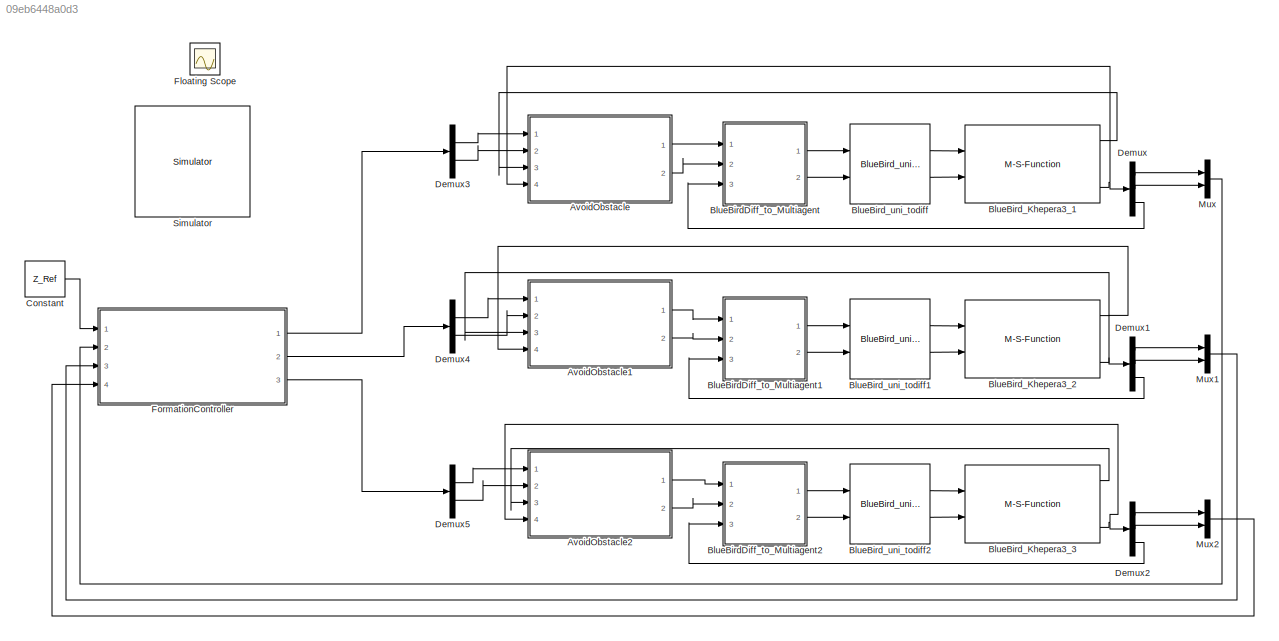
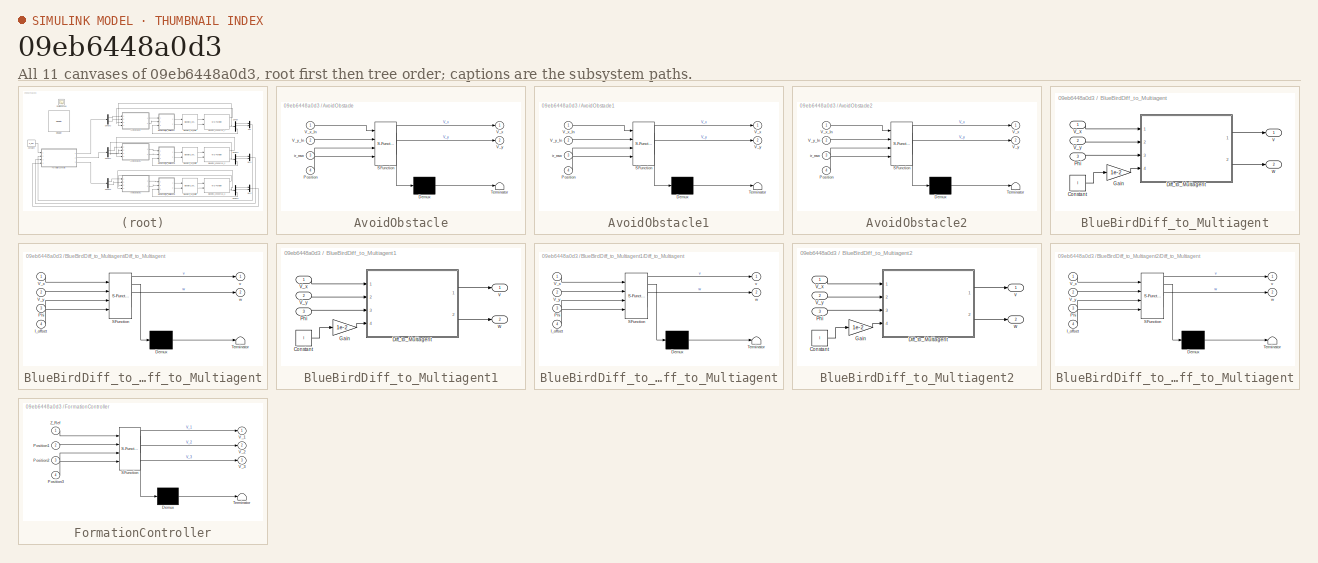
[diagram: thumbnail index - all 11 canvases of the model, root first then tree order]
MODEL slx_09eb6448a0d3
KIND model
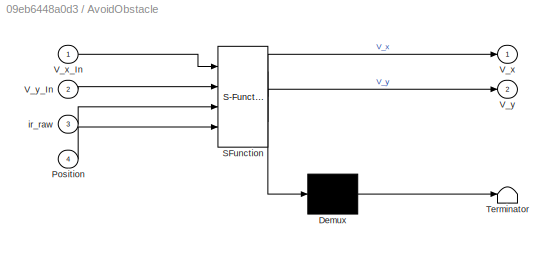
BLOCK [SubSystem] AvoidObstacle
  ErrorFcn = Stateflow.Translate.translate
  PermitHierarchicalResolution = ExplicitOnly
  Ports = [4, 2]
  RequestExecContextInheritance = off
  SFBlockType = MATLAB Function
  TreatAsAtomicUnit = on
BLOCK [Demux] AvoidObstacle/ Demux 
  Outputs = 1
  Ports = [1, 1]
BLOCK [S-Function] AvoidObstacle/ SFunction 
  EnableBusSupport = on
  FunctionName = sf_sfun
  PortCounts = [4 3]
  Ports = [4, 3]
  Tag = Stateflow S-Function BlueBird_Formation 5
BLOCK [Terminator] AvoidObstacle/ Terminator 
BLOCK [Inport] AvoidObstacle/Position
  IconDisplay = Port number
  Port = 4
BLOCK [Outport] AvoidObstacle/V_x
  IconDisplay = Port number
BLOCK [Inport] AvoidObstacle/V_x_In
  IconDisplay = Port number
BLOCK [Outport] AvoidObstacle/V_y
  IconDisplay = Port number
  Port = 2
BLOCK [Inport] AvoidObstacle/V_y_In
  IconDisplay = Port number
  Port = 2
BLOCK [Inport] AvoidObstacle/ir_raw
  IconDisplay = Port number
  Port = 3
BLOCK [SubSystem] AvoidObstacle1
  ErrorFcn = Stateflow.Translate.translate
  PermitHierarchicalResolution = ExplicitOnly
  Ports = [4, 2]
  RequestExecContextInheritance = off
  SFBlockType = MATLAB Function
  TreatAsAtomicUnit = on
BLOCK [Demux] AvoidObstacle1/ Demux 
  Outputs = 1
  Ports = [1, 1]
BLOCK [S-Function] AvoidObstacle1/ SFunction 
  EnableBusSupport = on
  FunctionName = sf_sfun
  PortCounts = [4 3]
  Ports = [4, 3]
  Tag = Stateflow S-Function BlueBird_Formation 6
BLOCK [Terminator] AvoidObstacle1/ Terminator 
BLOCK [Inport] AvoidObstacle1/Position
  IconDisplay = Port number
  Port = 4
BLOCK [Outport] AvoidObstacle1/V_x
  IconDisplay = Port number
BLOCK [Inport] AvoidObstacle1/V_x_In
  IconDisplay = Port number
BLOCK [Outport] AvoidObstacle1/V_y
  IconDisplay = Port number
  Port = 2
BLOCK [Inport] AvoidObstacle1/V_y_In
  IconDisplay = Port number
  Port = 2
BLOCK [Inport] AvoidObstacle1/ir_raw
  IconDisplay = Port number
  Port = 3
BLOCK [SubSystem] AvoidObstacle2
  ErrorFcn = Stateflow.Translate.translate
  PermitHierarchicalResolution = ExplicitOnly
  Ports = [4, 2]
  RequestExecContextInheritance = off
  SFBlockType = MATLAB Function
  TreatAsAtomicUnit = on
BLOCK [Demux] AvoidObstacle2/ Demux 
  Outputs = 1
  Ports = [1, 1]
BLOCK [S-Function] AvoidObstacle2/ SFunction 
  EnableBusSupport = on
  FunctionName = sf_sfun
  PortCounts = [4 3]
  Ports = [4, 3]
  Tag = Stateflow S-Function BlueBird_Formation 7
BLOCK [Terminator] AvoidObstacle2/ Terminator 
BLOCK [Inport] AvoidObstacle2/Position
  IconDisplay = Port number
  Port = 4
BLOCK [Outport] AvoidObstacle2/V_x
  IconDisplay = Port number
BLOCK [Inport] AvoidObstacle2/V_x_In
  IconDisplay = Port number
BLOCK [Outport] AvoidObstacle2/V_y
  IconDisplay = Port number
  Port = 2
BLOCK [Inport] AvoidObstacle2/V_y_In
  IconDisplay = Port number
  Port = 2
BLOCK [Inport] AvoidObstacle2/ir_raw
  IconDisplay = Port number
  Port = 3
BLOCK [SubSystem] BlueBirdDiff_to_Multiagent
  AncestorBlock = simiam/BlueBird_uni_todiff
  Ports = [3, 2]
  RequestExecContextInheritance = off
BLOCK [Constant] BlueBirdDiff_to_Multiagent/Constant
  Value = l
BLOCK [SubSystem] BlueBirdDiff_to_Multiagent/Diff_to_Multiagent
  ErrorFcn = Stateflow.Translate.translate
  PermitHierarchicalResolution = ExplicitOnly
  Ports = [4, 2]
  RequestExecContextInheritance = off
  SFBlockType = MATLAB Function
  TreatAsAtomicUnit = on
BLOCK [Demux] BlueBirdDiff_to_Multiagent/Diff_to_Multiagent/ Demux 
  Outputs = 1
  Ports = [1, 1]
BLOCK [S-Function] BlueBirdDiff_to_Multiagent/Diff_to_Multiagent/ SFunction 
  EnableBusSupport = on
  FunctionName = sf_sfun
  PortCounts = [4 3]
  Ports = [4, 3]
  Tag = Stateflow S-Function BlueBird_Formation 2
BLOCK [Terminator] BlueBirdDiff_to_Multiagent/Diff_to_Multiagent/ Terminator 
BLOCK [Inport] BlueBirdDiff_to_Multiagent/Diff_to_Multiagent/Phi
  IconDisplay = Port number
  Port = 3
BLOCK [Inport] BlueBirdDiff_to_Multiagent/Diff_to_Multiagent/V_x
  IconDisplay = Port number
BLOCK [Inport] BlueBirdDiff_to_Multiagent/Diff_to_Multiagent/V_y
  IconDisplay = Port number
  Port = 2
BLOCK [Inport] BlueBirdDiff_to_Multiagent/Diff_to_Multiagent/l_offset
  IconDisplay = Port number
  Port = 4
BLOCK [Outport] BlueBirdDiff_to_Multiagent/Diff_to_Multiagent/v
  IconDisplay = Port number
BLOCK [Outport] BlueBirdDiff_to_Multiagent/Diff_to_Multiagent/w
  IconDisplay = Port number
  Port = 2
BLOCK [Gain] BlueBirdDiff_to_Multiagent/Gain
  Gain = 1e-2
  OutDataTypeStr = Inherit: Inherit via internal rule
  ParamDataTypeStr = Inherit: Inherit via internal rule
  SaturateOnIntegerOverflow = off
BLOCK [Inport] BlueBirdDiff_to_Multiagent/Phi
  IconDisplay = Port number
  Port = 3
BLOCK [Inport] BlueBirdDiff_to_Multiagent/V_x
  IconDisplay = Port number
BLOCK [Inport] BlueBirdDiff_to_Multiagent/V_y
  IconDisplay = Port number
  Port = 2
BLOCK [Outport] BlueBirdDiff_to_Multiagent/v
  IconDisplay = Port number
BLOCK [Outport] BlueBirdDiff_to_Multiagent/w
  IconDisplay = Port number
  Port = 2
BLOCK [SubSystem] BlueBirdDiff_to_Multiagent1
  AncestorBlock = simiam/BlueBird_uni_todiff
  Ports = [3, 2]
  RequestExecContextInheritance = off
BLOCK [Constant] BlueBirdDiff_to_Multiagent1/Constant
  Value = l
BLOCK [SubSystem] BlueBirdDiff_to_Multiagent1/Diff_to_Multiagent
  ErrorFcn = Stateflow.Translate.translate
  PermitHierarchicalResolution = ExplicitOnly
  Ports = [4, 2]
  RequestExecContextInheritance = off
  SFBlockType = MATLAB Function
  TreatAsAtomicUnit = on
BLOCK [Demux] BlueBirdDiff_to_Multiagent1/Diff_to_Multiagent/ Demux 
  Outputs = 1
  Ports = [1, 1]
BLOCK [S-Function] BlueBirdDiff_to_Multiagent1/Diff_to_Multiagent/ SFunction 
  EnableBusSupport = on
  FunctionName = sf_sfun
  PortCounts = [4 3]
  Ports = [4, 3]
  Tag = Stateflow S-Function BlueBird_Formation 1
BLOCK [Terminator] BlueBirdDiff_to_Multiagent1/Diff_to_Multiagent/ Terminator 
BLOCK [Inport] BlueBirdDiff_to_Multiagent1/Diff_to_Multiagent/Phi
  IconDisplay = Port number
  Port = 3
BLOCK [Inport] BlueBirdDiff_to_Multiagent1/Diff_to_Multiagent/V_x
  IconDisplay = Port number
BLOCK [Inport] BlueBirdDiff_to_Multiagent1/Diff_to_Multiagent/V_y
  IconDisplay = Port number
  Port = 2
BLOCK [Inport] BlueBirdDiff_to_Multiagent1/Diff_to_Multiagent/l_offset
  IconDisplay = Port number
  Port = 4
BLOCK [Outport] BlueBirdDiff_to_Multiagent1/Diff_to_Multiagent/v
  IconDisplay = Port number
BLOCK [Outport] BlueBirdDiff_to_Multiagent1/Diff_to_Multiagent/w
  IconDisplay = Port number
  Port = 2
BLOCK [Gain] BlueBirdDiff_to_Multiagent1/Gain
  Gain = 1e-2
  OutDataTypeStr = Inherit: Inherit via internal rule
  ParamDataTypeStr = Inherit: Inherit via internal rule
  SaturateOnIntegerOverflow = off
BLOCK [Inport] BlueBirdDiff_to_Multiagent1/Phi
  IconDisplay = Port number
  Port = 3
BLOCK [Inport] BlueBirdDiff_to_Multiagent1/V_x
  IconDisplay = Port number
BLOCK [Inport] BlueBirdDiff_to_Multiagent1/V_y
  IconDisplay = Port number
  Port = 2
BLOCK [Outport] BlueBirdDiff_to_Multiagent1/v
  IconDisplay = Port number
BLOCK [Outport] BlueBirdDiff_to_Multiagent1/w
  IconDisplay = Port number
  Port = 2
BLOCK [SubSystem] BlueBirdDiff_to_Multiagent2
  AncestorBlock = simiam/BlueBird_uni_todiff
  Ports = [3, 2]
  RequestExecContextInheritance = off
BLOCK [Constant] BlueBirdDiff_to_Multiagent2/Constant
  Value = l
BLOCK [SubSystem] BlueBirdDiff_to_Multiagent2/Diff_to_Multiagent
  ErrorFcn = Stateflow.Translate.translate
  PermitHierarchicalResolution = ExplicitOnly
  Ports = [4, 2]
  RequestExecContextInheritance = off
  SFBlockType = MATLAB Function
  TreatAsAtomicUnit = on
BLOCK [Demux] BlueBirdDiff_to_Multiagent2/Diff_to_Multiagent/ Demux 
  Outputs = 1
  Ports = [1, 1]
BLOCK [S-Function] BlueBirdDiff_to_Multiagent2/Diff_to_Multiagent/ SFunction 
  EnableBusSupport = on
  FunctionName = sf_sfun
  PortCounts = [4 3]
  Ports = [4, 3]
  Tag = Stateflow S-Function BlueBird_Formation 3
BLOCK [Terminator] BlueBirdDiff_to_Multiagent2/Diff_to_Multiagent/ Terminator 
BLOCK [Inport] BlueBirdDiff_to_Multiagent2/Diff_to_Multiagent/Phi
  IconDisplay = Port number
  Port = 3
BLOCK [Inport] BlueBirdDiff_to_Multiagent2/Diff_to_Multiagent/V_x
  IconDisplay = Port number
BLOCK [Inport] BlueBirdDiff_to_Multiagent2/Diff_to_Multiagent/V_y
  IconDisplay = Port number
  Port = 2
BLOCK [Inport] BlueBirdDiff_to_Multiagent2/Diff_to_Multiagent/l_offset
  IconDisplay = Port number
  Port = 4
BLOCK [Outport] BlueBirdDiff_to_Multiagent2/Diff_to_Multiagent/v
  IconDisplay = Port number
BLOCK [Outport] BlueBirdDiff_to_Multiagent2/Diff_to_Multiagent/w
  IconDisplay = Port number
  Port = 2
BLOCK [Gain] BlueBirdDiff_to_Multiagent2/Gain
  Gain = 1e-2
  OutDataTypeStr = Inherit: Inherit via internal rule
  ParamDataTypeStr = Inherit: Inherit via internal rule
  SaturateOnIntegerOverflow = off
BLOCK [Inport] BlueBirdDiff_to_Multiagent2/Phi
  IconDisplay = Port number
  Port = 3
BLOCK [Inport] BlueBirdDiff_to_Multiagent2/V_x
  IconDisplay = Port number
BLOCK [Inport] BlueBirdDiff_to_Multiagent2/V_y
  IconDisplay = Port number
  Port = 2
BLOCK [Outport] BlueBirdDiff_to_Multiagent2/v
  IconDisplay = Port number
BLOCK [Outport] BlueBirdDiff_to_Multiagent2/w
  IconDisplay = Port number
  Port = 2
BLOCK [M-S-Function] BlueBird_Khepera3_1
  AncestorBlock = simiam/Khepera III
  FunctionName = msfun_khepera3_WithPosition
  Parameters = x_0,y_0,theta_0,ShowObservation
  Ports = [2, 4]
BLOCK [M-S-Function] BlueBird_Khepera3_2
  AncestorBlock = simiam/Khepera III
  FunctionName = msfun_khepera3_WithPosition
  Parameters = x_0,y_0,theta_0,ShowObservation
  Ports = [2, 4]
BLOCK [M-S-Function] BlueBird_Khepera3_3
  AncestorBlock = simiam/Khepera III
  FunctionName = msfun_khepera3_WithPosition
  Parameters = x_0,y_0,theta_0,ShowObservation
  Ports = [2, 4]
BLOCK [Reference] BlueBird_uni_todiff  REF=KSim/BlueBird_uni_todiff
  Ports = [2, 2]
  SourceBlock = KSim/BlueBird_uni_todiff
  SourceType = BlueBird_uni_todiff
  b = 0.0896796882
  r_L = 0.0213200003
  r_R = 0.0213200003
BLOCK [Reference] BlueBird_uni_todiff1  REF=KSim/BlueBird_uni_todiff
  Ports = [2, 2]
  SourceBlock = KSim/BlueBird_uni_todiff
  SourceType = BlueBird_uni_todiff
  b = 0.0896796882
  r_L = 0.0213200003
  r_R = 0.0213200003
BLOCK [Reference] BlueBird_uni_todiff2  REF=KSim/BlueBird_uni_todiff
  Ports = [2, 2]
  SourceBlock = KSim/BlueBird_uni_todiff
  SourceType = BlueBird_uni_todiff
  b = 0.0896796882
  r_L = 0.0213200003
  r_R = 0.0213200003
BLOCK [Constant] Constant
  Value = Z_Ref
BLOCK [Demux] Demux
  DisplayOption = bar
  Outputs = 3
  Ports = [1, 3]
BLOCK [Demux] Demux1
  DisplayOption = bar
  Outputs = 3
  Ports = [1, 3]
BLOCK [Demux] Demux2
  DisplayOption = bar
  Outputs = 3
  Ports = [1, 3]
BLOCK [Demux] Demux3
  DisplayOption = bar
  Outputs = 2
  Ports = [1, 2]
BLOCK [Demux] Demux4
  DisplayOption = bar
  Outputs = 2
  Ports = [1, 2]
BLOCK [Demux] Demux5
  DisplayOption = bar
  Outputs = 2
  Ports = [1, 2]
BLOCK [Scope] Floating Scope
  DataFormat = StructureWithTime
  Floating = on
  IOType = viewer
  NumInputPorts = 1
  Ports = []
  SampleTime = 0
  ShowLegends = off
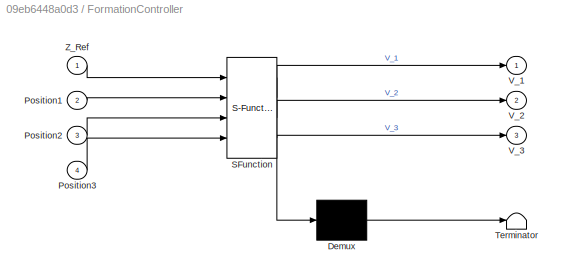
BLOCK [SubSystem] FormationController
  ErrorFcn = Stateflow.Translate.translate
  PermitHierarchicalResolution = ExplicitOnly
  Ports = [4, 3]
  RequestExecContextInheritance = off
  SFBlockType = MATLAB Function
  TreatAsAtomicUnit = on
BLOCK [Demux] FormationController/ Demux 
  Outputs = 1
  Ports = [1, 1]
BLOCK [S-Function] FormationController/ SFunction 
  EnableBusSupport = on
  FunctionName = sf_sfun
  PortCounts = [4 4]
  Ports = [4, 4]
  Tag = Stateflow S-Function BlueBird_Formation 4
BLOCK [Terminator] FormationController/ Terminator 
BLOCK [Inport] FormationController/Position1
  IconDisplay = Port number
  Port = 2
BLOCK [Inport] FormationController/Position2
  IconDisplay = Port number
  Port = 3
BLOCK [Inport] FormationController/Position3
  IconDisplay = Port number
  Port = 4
BLOCK [Outport] FormationController/V_1
  IconDisplay = Port number
BLOCK [Outport] FormationController/V_2
  IconDisplay = Port number
  Port = 2
BLOCK [Outport] FormationController/V_3
  IconDisplay = Port number
  Port = 3
BLOCK [Inport] FormationController/Z_Ref
  IconDisplay = Port number
BLOCK [Mux] Mux
  DisplayOption = bar
  Inputs = 2
  Ports = [2, 1]
BLOCK [Mux] Mux1
  DisplayOption = bar
  Inputs = 2
  Ports = [2, 1]
BLOCK [Mux] Mux2
  DisplayOption = bar
  Inputs = 2
  Ports = [2, 1]
BLOCK [Reference] Simulator  REF=KSim/Simulator
  Ports = []
  Priority = 1
  SourceBlock = KSim/Simulator
  SourceType = Simulator
LINE AvoidObstacle1:1 -> BlueBirdDiff_to_Multiagent1:1
LINE AvoidObstacle1:2 -> BlueBirdDiff_to_Multiagent1:2
LINE AvoidObstacle2:1 -> BlueBirdDiff_to_Multiagent2:1
LINE AvoidObstacle2:2 -> BlueBirdDiff_to_Multiagent2:2
LINE AvoidObstacle:1 -> BlueBirdDiff_to_Multiagent:1
LINE AvoidObstacle:2 -> BlueBirdDiff_to_Multiagent:2
LINE BlueBirdDiff_to_Multiagent1:1 -> BlueBird_uni_todiff1:1
LINE BlueBirdDiff_to_Multiagent1:2 -> BlueBird_uni_todiff1:2
LINE BlueBirdDiff_to_Multiagent2:1 -> BlueBird_uni_todiff2:1
LINE BlueBirdDiff_to_Multiagent2:2 -> BlueBird_uni_todiff2:2
LINE BlueBirdDiff_to_Multiagent:1 -> BlueBird_uni_todiff:1
LINE BlueBirdDiff_to_Multiagent:2 -> BlueBird_uni_todiff:2
LINE BlueBird_Khepera3_1:1 -> AvoidObstacle:3
NET BlueBird_Khepera3_1:4 -> AvoidObstacle:4, Demux:1
LINE BlueBird_Khepera3_2:1 -> AvoidObstacle1:3
NET BlueBird_Khepera3_2:4 -> AvoidObstacle1:4, Demux1:1
LINE BlueBird_Khepera3_3:1 -> AvoidObstacle2:3
NET BlueBird_Khepera3_3:4 -> AvoidObstacle2:4, Demux2:1
LINE BlueBird_uni_todiff1:1 -> BlueBird_Khepera3_2:1
LINE BlueBird_uni_todiff1:2 -> BlueBird_Khepera3_2:2
LINE BlueBird_uni_todiff2:1 -> BlueBird_Khepera3_3:1
LINE BlueBird_uni_todiff2:2 -> BlueBird_Khepera3_3:2
LINE BlueBird_uni_todiff:1 -> BlueBird_Khepera3_1:1
LINE BlueBird_uni_todiff:2 -> BlueBird_Khepera3_1:2
LINE Constant:1 -> FormationController:1
LINE Demux1:1 -> Mux1:1
LINE Demux1:2 -> Mux1:2
LINE Demux1:3 -> BlueBirdDiff_to_Multiagent1:3
LINE Demux2:1 -> Mux2:1
LINE Demux2:2 -> Mux2:2
LINE Demux2:3 -> BlueBirdDiff_to_Multiagent2:3
LINE Demux3:1 -> AvoidObstacle:1
LINE Demux3:2 -> AvoidObstacle:2
LINE Demux4:1 -> AvoidObstacle1:1
LINE Demux4:2 -> AvoidObstacle1:2
LINE Demux5:1 -> AvoidObstacle2:1
LINE Demux5:2 -> AvoidObstacle2:2
LINE Demux:1 -> Mux:1
LINE Demux:2 -> Mux:2
LINE Demux:3 -> BlueBirdDiff_to_Multiagent:3
LINE FormationController:1 -> Demux3:1
LINE FormationController:2 -> Demux4:1
LINE FormationController:3 -> Demux5:1
LINE Mux1:1 -> FormationController:3
LINE Mux2:1 -> FormationController:4
LINE Mux:1 -> FormationController:2
note: NET lines group one-source signal fan-out (src -> all destinations, sorted); 1:1 wires keep LINE
